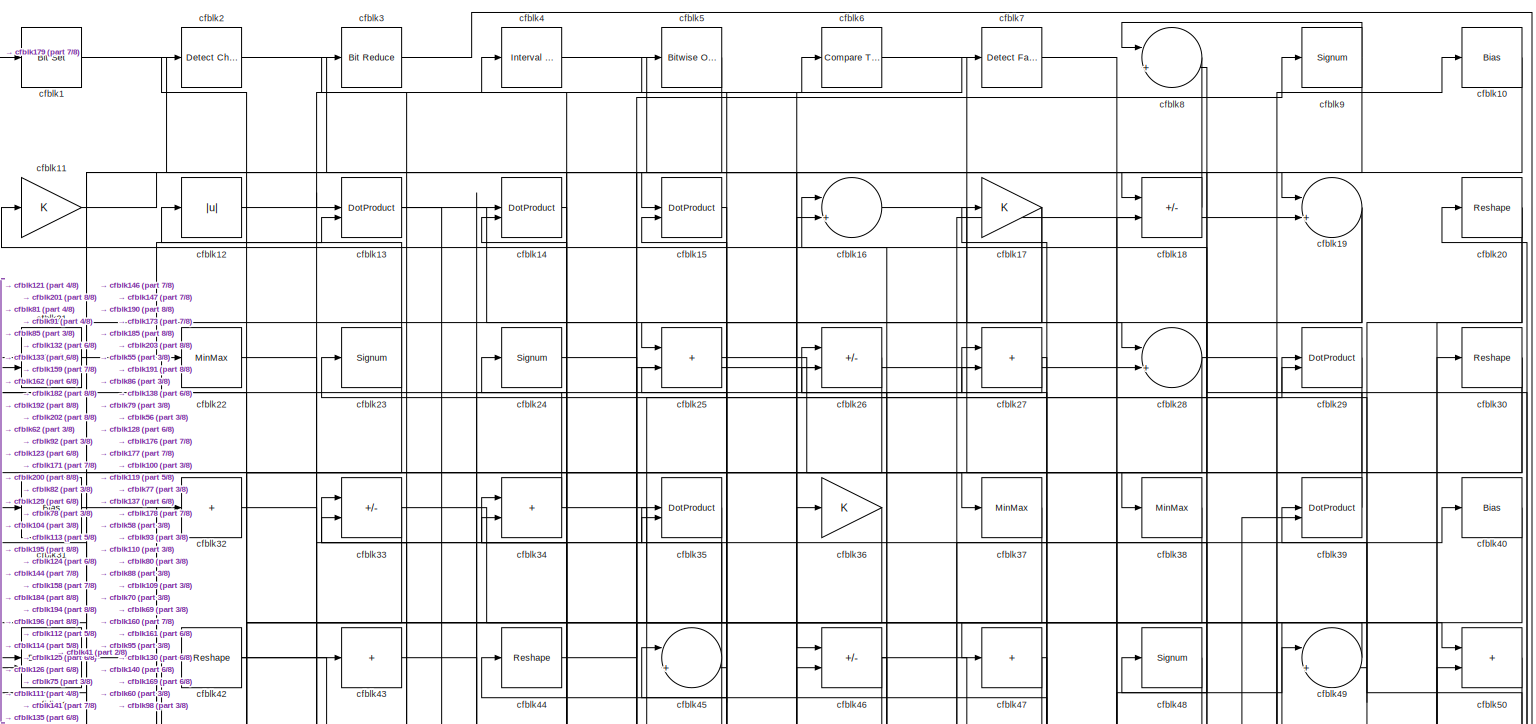
[diagram: root canvas - part 1/8, full width, top band]
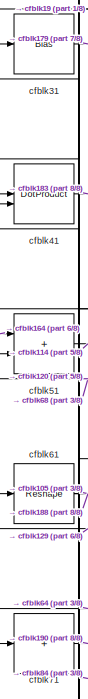
[diagram: root canvas - part 2/8, top left region]
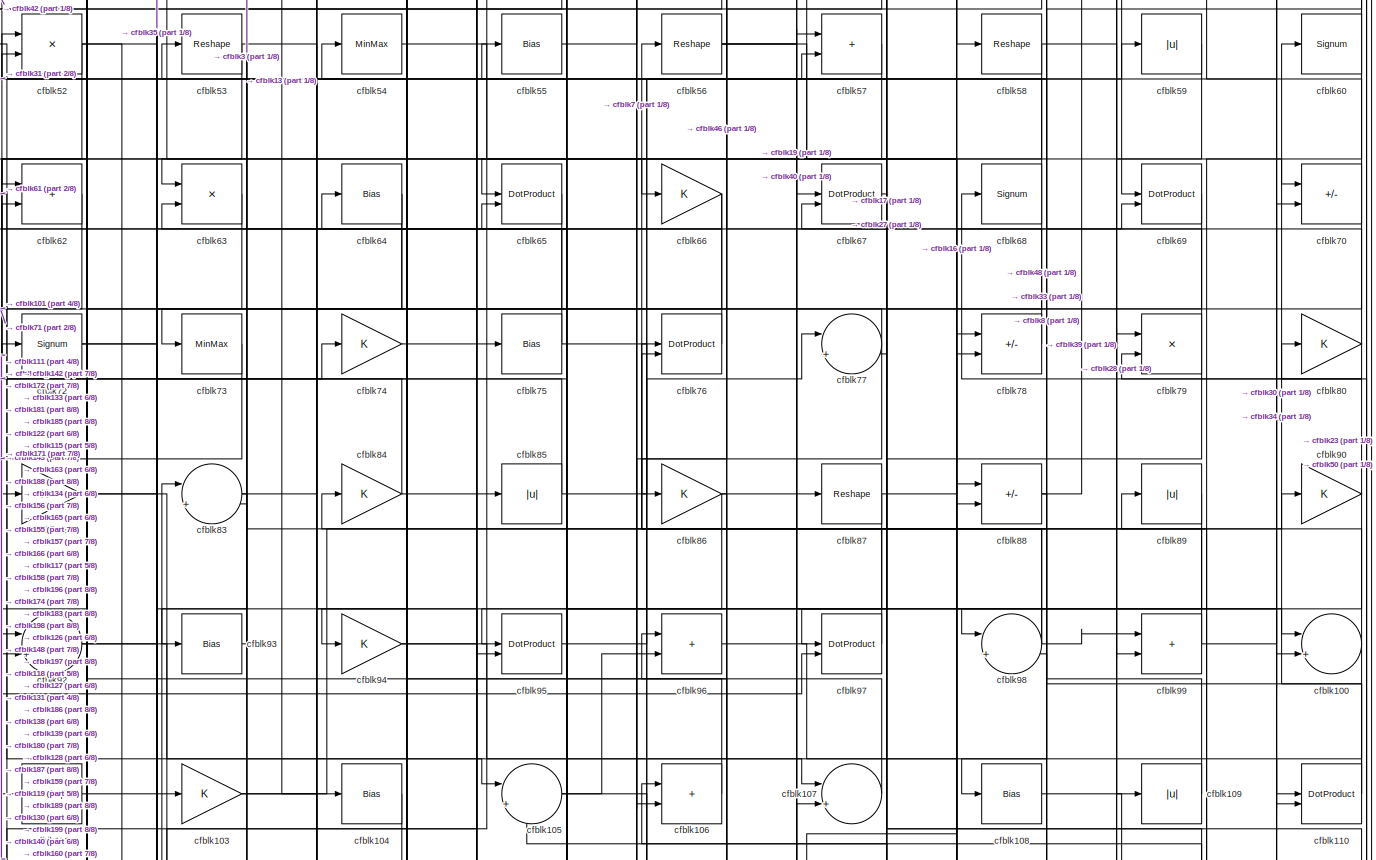
[diagram: root canvas - part 3/8, full width, middle band]
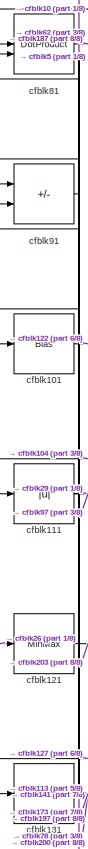
[diagram: root canvas - part 4/8, middle left region]
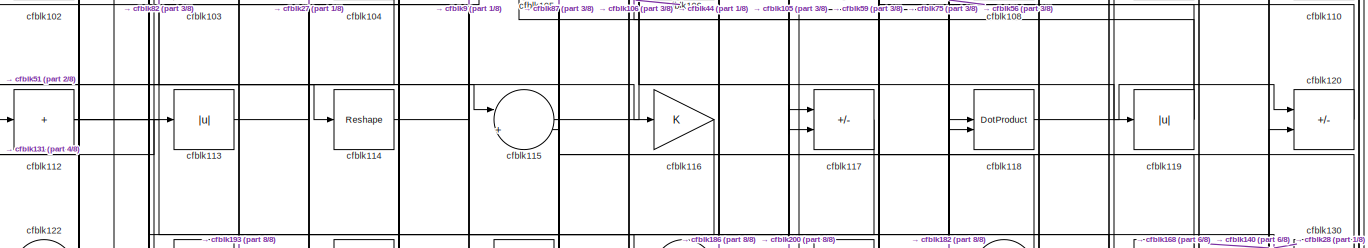
[diagram: root canvas - part 5/8, full width, middle band]
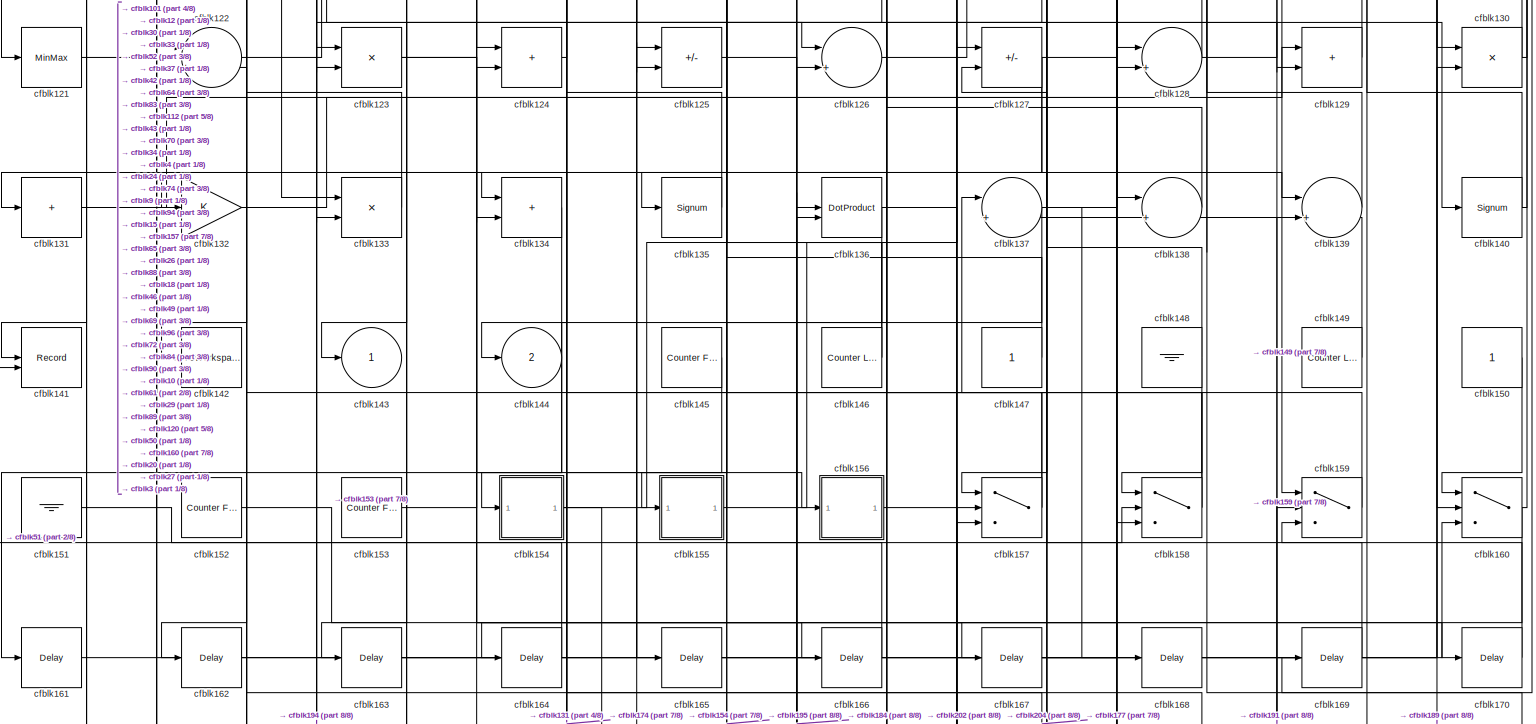
[diagram: root canvas - part 6/8, full width, bottom band]
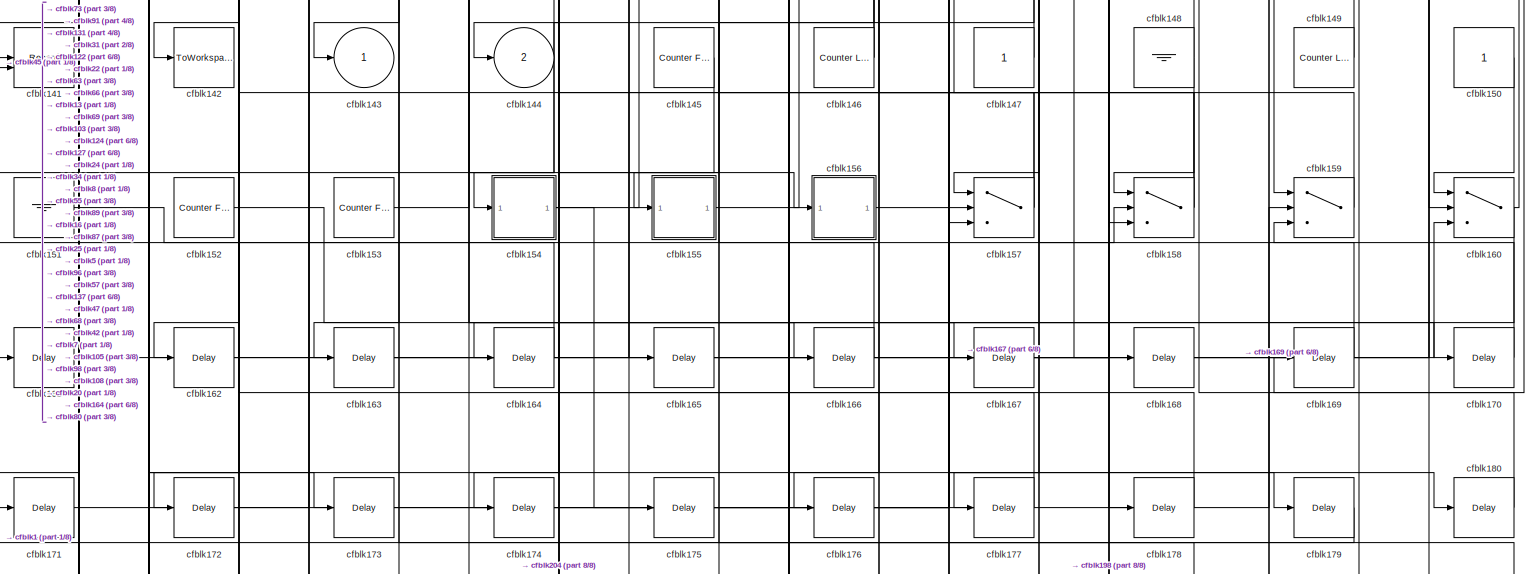
[diagram: root canvas - part 7/8, full width, bottom band]
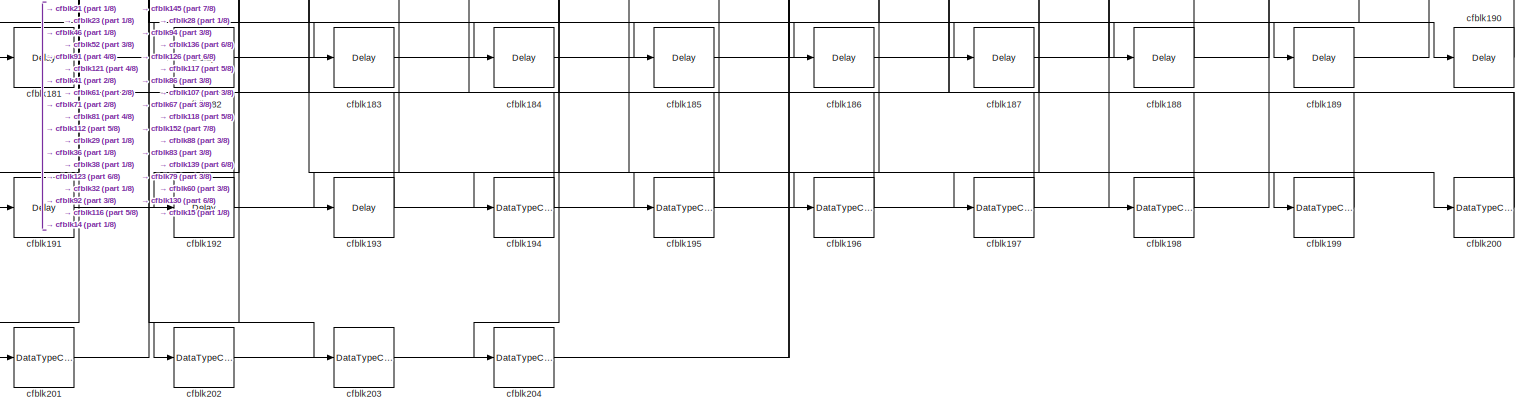
[diagram: root canvas - part 8/8, full width, bottom band]
MODEL slx_2ba98c5d0d67
KIND model
CONFIG AbsTol = auto
CONFIG EnableMultiTasking = off
CONFIG FixedStep = auto
CONFIG MaxStep = auto
CONFIG MinStep = auto
CONFIG RelTol = 1e-3
CONFIG SampleTimeConstraint = Unconstrained
CONFIG SolverName = VariableStepAuto
CONFIG StartTime = 0.0
CONFIG StopTime = 10.0
BLOCK [Reference] cfblk1  REF=simulink/Logic and Bit
Operations/Bit Set
  LibrarySourceBlock = hdlsllib/Logic and Bit\nOperations/Bit Set
  SourceBlock = simulink/Logic and Bit\nOperations/Bit Set
  SourceType = Bit Set
BLOCK [Bias] cfblk10
  Bias = 0.0
  SaturateOnIntegerOverflow = off
BLOCK [Sum] cfblk100
  Inputs = |++
BLOCK [Bias] cfblk101
  Bias = 0.0
  SaturateOnIntegerOverflow = off
BLOCK [Reshape] cfblk102
BLOCK [Gain] cfblk103
BLOCK [Bias] cfblk104
  Bias = 0.0
  SaturateOnIntegerOverflow = off
BLOCK [Sum] cfblk105
  Inputs = |++
BLOCK [Sum] cfblk106
  IconShape = rectangular
BLOCK [Sum] cfblk107
  Inputs = |++
BLOCK [Bias] cfblk108
  Bias = 0.0
  SaturateOnIntegerOverflow = off
BLOCK [Abs] cfblk109
  SaturateOnIntegerOverflow = off
BLOCK [Gain] cfblk11
BLOCK [DotProduct] cfblk110
  OutDataTypeStr = Inherit: Inherit via internal rule
BLOCK [Abs] cfblk111
  SaturateOnIntegerOverflow = off
BLOCK [Sum] cfblk112
  IconShape = rectangular
  Inputs = +
BLOCK [Abs] cfblk113
  SaturateOnIntegerOverflow = off
BLOCK [Reshape] cfblk114
BLOCK [Sum] cfblk115
  Inputs = |++
BLOCK [Gain] cfblk116
BLOCK [Sum] cfblk117
  IconShape = rectangular
  Inputs = +-
BLOCK [DotProduct] cfblk118
  OutDataTypeStr = Inherit: Inherit via internal rule
BLOCK [Abs] cfblk119
  SaturateOnIntegerOverflow = off
BLOCK [Abs] cfblk12
  SaturateOnIntegerOverflow = off
BLOCK [Sum] cfblk120
  IconShape = rectangular
  Inputs = +-
BLOCK [MinMax] cfblk121
BLOCK [Sum] cfblk122
  Inputs = |++
BLOCK [Product] cfblk123
  Inputs = */
  RndMeth = Zero
  SaturateOnIntegerOverflow = on
BLOCK [Sum] cfblk124
  IconShape = rectangular
BLOCK [Sum] cfblk125
  IconShape = rectangular
  Inputs = +-
BLOCK [Sum] cfblk126
  Inputs = |++
BLOCK [Sum] cfblk127
  IconShape = rectangular
  Inputs = +-
BLOCK [Sum] cfblk128
  Inputs = |++
BLOCK [Sum] cfblk129
  IconShape = rectangular
BLOCK [DotProduct] cfblk13
  OutDataTypeStr = Inherit: Inherit via internal rule
BLOCK [Product] cfblk130
  Inputs = */
  RndMeth = Zero
  SaturateOnIntegerOverflow = on
BLOCK [Sum] cfblk131
  IconShape = rectangular
  Inputs = +
BLOCK [Gain] cfblk132
BLOCK [Product] cfblk133
  Inputs = */
  RndMeth = Zero
  SaturateOnIntegerOverflow = on
BLOCK [Sum] cfblk134
  IconShape = rectangular
BLOCK [Signum] cfblk135
BLOCK [DotProduct] cfblk136
  OutDataTypeStr = Inherit: Inherit via internal rule
BLOCK [Sum] cfblk137
  Inputs = |++
BLOCK [Sum] cfblk138
  Inputs = |++
BLOCK [Sum] cfblk139
  Inputs = |++
BLOCK [DotProduct] cfblk14
  OutDataTypeStr = Inherit: Inherit via internal rule
BLOCK [Signum] cfblk140
BLOCK [Record] cfblk141
  CompatibilityTag = XY
  FileSettingsInternal = {"entries":[{"content":{"excelSettings":{"content":{},"type":"Streamout.ExcelSettings"}},"type":"Streamout.FileSettingStorage","uuid":""}],"packageUris":["http:\/\/schema.mathworks.com\/mf0\/streamout_blocks\/R2020a"],"version":"1.0"}
  Layout = [1 1]
  SignalsInternal = {"entries":[{"content":{"signals":[{"content":{"blockPath":[],"dimensions":[1],"domain":"","lineColor":"#a2142f","plots":[1],"port":1,"signalID":998,"signalName":"XY Graph:1"},"type":"RecordBlkView.Signal","uuid":""},{"content":{"blockPath":[],"dimensions":[1],"domain":"","lineColor":"#139fff","plots":[1],"port":2,"signalID":1001,"signalName":"XY Graph:2"},"type":"RecordBlkView.Signal","uuid":""}]...<+145ch>
  VisualizationBindings = {"xyplotplugin":{"info":[{"series":[{"bindingParametersList":[{"parameter":"X-Axis","signalID":998,"signalName":"XY Graph:1"},{"parameter":"Y-Axis","signalID":1001,"signalName":"XY Graph:2"}],"seriesID":57982}],"subplotID":1}]}}
  st = -1
BLOCK [ToWorkspace] cfblk142
  MaxDataPoints = inf
  SampleTime = -1
  SaveFormat = Timeseries
  VariableName = simout
BLOCK [Outport] cfblk143
  VectorParamsAs1DForOutWhenUnconnected = off
BLOCK [Outport] cfblk144
  Port = 2
  VectorParamsAs1DForOutWhenUnconnected = off
BLOCK [Reference] cfblk145  REF=hdlsllib/Sources/Counter
Free-Running
  SourceBlock = hdlsllib/Sources/Counter\nFree-Running
  SourceType = Counter Free-Running
BLOCK [Reference] cfblk146  REF=hdlsllib/Sources/Counter
Limited
  SourceBlock = hdlsllib/Sources/Counter\nLimited
  SourceType = Counter Limited
BLOCK [Constant] cfblk147
  SampleTime = -1
BLOCK [Ground] cfblk148
BLOCK [Reference] cfblk149  REF=hdlsllib/Sources/Counter
Limited
  SourceBlock = hdlsllib/Sources/Counter\nLimited
  SourceType = Counter Limited
BLOCK [DotProduct] cfblk15
  OutDataTypeStr = Inherit: Inherit via internal rule
BLOCK [Constant] cfblk150
  SampleTime = -1
BLOCK [Ground] cfblk151
BLOCK [Reference] cfblk152  REF=hdlsllib/Sources/Counter
Free-Running
  SourceBlock = hdlsllib/Sources/Counter\nFree-Running
  SourceType = Counter Free-Running
BLOCK [Reference] cfblk153  REF=hdlsllib/Sources/Counter
Free-Running
  SourceBlock = hdlsllib/Sources/Counter\nFree-Running
  SourceType = Counter Free-Running
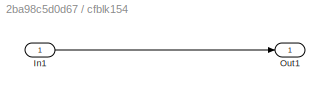
BLOCK [SubSystem] cfblk154
  LibrarySourceBlock = hdlsllib/Ports &\nSubsystems/Subsystem
BLOCK [Inport] cfblk154/In1
BLOCK [Outport] cfblk154/Out1
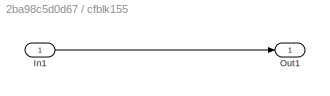
BLOCK [SubSystem] cfblk155
  LibrarySourceBlock = hdlsllib/Ports &\nSubsystems/Subsystem
BLOCK [Inport] cfblk155/In1
BLOCK [Outport] cfblk155/Out1
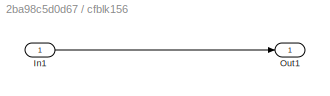
BLOCK [SubSystem] cfblk156
  LibrarySourceBlock = hdlsllib/Ports &\nSubsystems/Subsystem
BLOCK [Inport] cfblk156/In1
BLOCK [Outport] cfblk156/Out1
BLOCK [Switch] cfblk157
  InputSameDT = off
  SaturateOnIntegerOverflow = off
BLOCK [Switch] cfblk158
  InputSameDT = off
  SaturateOnIntegerOverflow = off
BLOCK [Switch] cfblk159
  InputSameDT = off
  SaturateOnIntegerOverflow = off
BLOCK [Sum] cfblk16
  Inputs = |++
BLOCK [Switch] cfblk160
  InputSameDT = off
  SaturateOnIntegerOverflow = off
BLOCK [Delay] cfblk161
  InputPortMap = u0
  SampleTime = 1
BLOCK [Delay] cfblk162
  InputPortMap = u0
  SampleTime = 1
BLOCK [Delay] cfblk163
  InputPortMap = u0
  SampleTime = 1
BLOCK [Delay] cfblk164
  InputPortMap = u0
  SampleTime = 1
BLOCK [Delay] cfblk165
  InputPortMap = u0
  SampleTime = 1
BLOCK [Delay] cfblk166
  InputPortMap = u0
  SampleTime = 1
BLOCK [Delay] cfblk167
  InputPortMap = u0
  SampleTime = 1
BLOCK [Delay] cfblk168
  InputPortMap = u0
  SampleTime = 1
BLOCK [Delay] cfblk169
  InputPortMap = u0
  SampleTime = 1
BLOCK [Gain] cfblk17
BLOCK [Delay] cfblk170
  InputPortMap = u0
  SampleTime = 1
BLOCK [Delay] cfblk171
  InputPortMap = u0
  SampleTime = 1
BLOCK [Delay] cfblk172
  InputPortMap = u0
  SampleTime = 1
BLOCK [Delay] cfblk173
  InputPortMap = u0
  SampleTime = 1
BLOCK [Delay] cfblk174
  InputPortMap = u0
  SampleTime = 1
BLOCK [Delay] cfblk175
  InputPortMap = u0
  SampleTime = 1
BLOCK [Delay] cfblk176
  InputPortMap = u0
  SampleTime = 1
BLOCK [Delay] cfblk177
  InputPortMap = u0
  SampleTime = 1
BLOCK [Delay] cfblk178
  InputPortMap = u0
  SampleTime = 1
BLOCK [Delay] cfblk179
  InputPortMap = u0
  SampleTime = 1
BLOCK [Sum] cfblk18
  IconShape = rectangular
  Inputs = +-
BLOCK [Delay] cfblk180
  InputPortMap = u0
  SampleTime = 1
BLOCK [Delay] cfblk181
  InputPortMap = u0
  SampleTime = 1
BLOCK [Delay] cfblk182
  InputPortMap = u0
  SampleTime = 1
BLOCK [Delay] cfblk183
  InputPortMap = u0
  SampleTime = 1
BLOCK [Delay] cfblk184
  InputPortMap = u0
  SampleTime = 1
BLOCK [Delay] cfblk185
  InputPortMap = u0
  SampleTime = 1
BLOCK [Delay] cfblk186
  InputPortMap = u0
  SampleTime = 1
BLOCK [Delay] cfblk187
  InputPortMap = u0
  SampleTime = 1
BLOCK [Delay] cfblk188
  InputPortMap = u0
  SampleTime = 1
BLOCK [Delay] cfblk189
  InputPortMap = u0
  SampleTime = 1
BLOCK [Sum] cfblk19
  Inputs = |++
BLOCK [Delay] cfblk190
  InputPortMap = u0
  SampleTime = 1
BLOCK [Delay] cfblk191
  InputPortMap = u0
  SampleTime = 1
BLOCK [Delay] cfblk192
  InputPortMap = u0
  SampleTime = 1
BLOCK [Delay] cfblk193
  InputPortMap = u0
  SampleTime = 1
BLOCK [DataTypeConversion] cfblk194
  OutDataTypeStr = uint8
  RndMeth = Floor
  SaturateOnIntegerOverflow = off
BLOCK [DataTypeConversion] cfblk195
  OutDataTypeStr = uint8
  RndMeth = Floor
  SaturateOnIntegerOverflow = off
BLOCK [DataTypeConversion] cfblk196
  OutDataTypeStr = uint8
  RndMeth = Floor
  SaturateOnIntegerOverflow = off
BLOCK [DataTypeConversion] cfblk197
  OutDataTypeStr = uint8
  RndMeth = Floor
  SaturateOnIntegerOverflow = off
BLOCK [DataTypeConversion] cfblk198
  OutDataTypeStr = uint8
  RndMeth = Floor
  SaturateOnIntegerOverflow = off
BLOCK [DataTypeConversion] cfblk199
  OutDataTypeStr = uint8
  RndMeth = Floor
  SaturateOnIntegerOverflow = off
BLOCK [Reference] cfblk2  REF=simulink/Logic and Bit
Operations/Detect
Change
  LibrarySourceBlock = hdlsllib/Logic and Bit\nOperations/Detect\nChange
  SourceBlock = simulink/Logic and Bit\nOperations/Detect\nChange
  SourceType = Detect Change
BLOCK [Reshape] cfblk20
BLOCK [DataTypeConversion] cfblk200
  RndMeth = Floor
  SaturateOnIntegerOverflow = off
BLOCK [DataTypeConversion] cfblk201
  OutDataTypeStr = uint8
  RndMeth = Floor
  SaturateOnIntegerOverflow = off
BLOCK [DataTypeConversion] cfblk202
  OutDataTypeStr = uint8
  RndMeth = Floor
  SaturateOnIntegerOverflow = off
BLOCK [DataTypeConversion] cfblk203
  OutDataTypeStr = uint8
  RndMeth = Floor
  SaturateOnIntegerOverflow = off
BLOCK [DataTypeConversion] cfblk204
  OutDataTypeStr = uint8
  RndMeth = Floor
  SaturateOnIntegerOverflow = off
BLOCK [DotProduct] cfblk21
  OutDataTypeStr = Inherit: Inherit via internal rule
BLOCK [MinMax] cfblk22
BLOCK [Signum] cfblk23
BLOCK [Signum] cfblk24
BLOCK [Sum] cfblk25
  IconShape = rectangular
BLOCK [Sum] cfblk26
  IconShape = rectangular
  Inputs = +-
BLOCK [Sum] cfblk27
  IconShape = rectangular
BLOCK [Sum] cfblk28
  Inputs = |++
BLOCK [DotProduct] cfblk29
  OutDataTypeStr = Inherit: Inherit via internal rule
BLOCK [Reference] cfblk3  REF=hdlsllib/Logic and Bit
Operations/Bit Reduce
  SourceBlock = hdlsllib/Logic and Bit\nOperations/Bit Reduce
  SourceType = Bit Reduce
BLOCK [Reshape] cfblk30
BLOCK [Bias] cfblk31
  Bias = 0.0
  SaturateOnIntegerOverflow = off
BLOCK [Sum] cfblk32
  IconShape = rectangular
  Inputs = +
BLOCK [Sum] cfblk33
  IconShape = rectangular
  Inputs = +-
BLOCK [Sum] cfblk34
  IconShape = rectangular
BLOCK [DotProduct] cfblk35
  OutDataTypeStr = Inherit: Inherit via internal rule
BLOCK [Gain] cfblk36
BLOCK [MinMax] cfblk37
BLOCK [MinMax] cfblk38
BLOCK [DotProduct] cfblk39
  OutDataTypeStr = Inherit: Inherit via internal rule
BLOCK [Reference] cfblk4  REF=hdlsllib/Logic and Bit
Operations/Interval Test
  SourceBlock = hdlsllib/Logic and Bit\nOperations/Interval Test
  SourceType = Interval Test
BLOCK [Bias] cfblk40
  Bias = 0.0
  SaturateOnIntegerOverflow = off
BLOCK [DotProduct] cfblk41
  OutDataTypeStr = Inherit: Inherit via internal rule
BLOCK [Reshape] cfblk42
BLOCK [Sum] cfblk43
  IconShape = rectangular
  Inputs = +
BLOCK [Reshape] cfblk44
BLOCK [Sum] cfblk45
  Inputs = |++
BLOCK [Sum] cfblk46
  IconShape = rectangular
  Inputs = +-
BLOCK [Sum] cfblk47
  IconShape = rectangular
  Inputs = +
BLOCK [Signum] cfblk48
BLOCK [Sum] cfblk49
  Inputs = |++
BLOCK [Reference] cfblk5  REF=simulink/Logic and Bit
Operations/Bitwise
Operator
  LibrarySourceBlock = hdlsllib/Logic and Bit\nOperations/Bitwise\nOperator
  SourceBlock = simulink/Logic and Bit\nOperations/Bitwise\nOperator
  SourceType = Bitwise Operator
BLOCK [Sum] cfblk50
  IconShape = rectangular
BLOCK [Sum] cfblk51
  IconShape = rectangular
BLOCK [Product] cfblk52
  Inputs = */
  RndMeth = Zero
  SaturateOnIntegerOverflow = on
BLOCK [Reshape] cfblk53
BLOCK [MinMax] cfblk54
BLOCK [Bias] cfblk55
  Bias = 0.0
  SaturateOnIntegerOverflow = off
BLOCK [Reshape] cfblk56
BLOCK [Sum] cfblk57
  IconShape = rectangular
BLOCK [Reshape] cfblk58
BLOCK [Abs] cfblk59
  SaturateOnIntegerOverflow = off
BLOCK [Reference] cfblk6  REF=hdlsllib/Logic and Bit
Operations/Compare
To Constant
  SourceBlock = hdlsllib/Logic and Bit\nOperations/Compare\nTo Constant
  SourceType = Compare To Constant
BLOCK [Signum] cfblk60
BLOCK [Reshape] cfblk61
BLOCK [Sum] cfblk62
  IconShape = rectangular
BLOCK [Product] cfblk63
  Inputs = */
  RndMeth = Zero
  SaturateOnIntegerOverflow = on
BLOCK [Bias] cfblk64
  Bias = 0.0
  SaturateOnIntegerOverflow = off
BLOCK [DotProduct] cfblk65
  OutDataTypeStr = Inherit: Inherit via internal rule
BLOCK [Gain] cfblk66
BLOCK [DotProduct] cfblk67
  OutDataTypeStr = Inherit: Inherit via internal rule
BLOCK [Signum] cfblk68
BLOCK [DotProduct] cfblk69
  OutDataTypeStr = Inherit: Inherit via internal rule
BLOCK [Reference] cfblk7  REF=hdlsllib/Logic and Bit
Operations/Detect Fall
Nonpositive
  SourceBlock = hdlsllib/Logic and Bit\nOperations/Detect Fall\nNonpositive
  SourceType = Detect Fall Nonpositive
BLOCK [Sum] cfblk70
  IconShape = rectangular
  Inputs = +-
BLOCK [Sum] cfblk71
  IconShape = rectangular
  Inputs = +
BLOCK [Signum] cfblk72
BLOCK [MinMax] cfblk73
BLOCK [Gain] cfblk74
BLOCK [Bias] cfblk75
  Bias = 0.0
  SaturateOnIntegerOverflow = off
BLOCK [DotProduct] cfblk76
  OutDataTypeStr = Inherit: Inherit via internal rule
BLOCK [Sum] cfblk77
  Inputs = |++
BLOCK [Sum] cfblk78
  IconShape = rectangular
  Inputs = +-
BLOCK [Product] cfblk79
  Inputs = */
  RndMeth = Zero
  SaturateOnIntegerOverflow = on
BLOCK [Sum] cfblk8
  Inputs = |++
BLOCK [Gain] cfblk80
BLOCK [DotProduct] cfblk81
  OutDataTypeStr = Inherit: Inherit via internal rule
BLOCK [Gain] cfblk82
BLOCK [Sum] cfblk83
  Inputs = |++
BLOCK [Gain] cfblk84
BLOCK [Abs] cfblk85
  SaturateOnIntegerOverflow = off
BLOCK [Gain] cfblk86
BLOCK [Reshape] cfblk87
BLOCK [Sum] cfblk88
  IconShape = rectangular
  Inputs = +-
BLOCK [Abs] cfblk89
  SaturateOnIntegerOverflow = off
BLOCK [Signum] cfblk9
BLOCK [Gain] cfblk90
BLOCK [Sum] cfblk91
  IconShape = rectangular
  Inputs = +-
BLOCK [Sum] cfblk92
  Inputs = |++
BLOCK [Bias] cfblk93
  Bias = 0.0
  SaturateOnIntegerOverflow = off
BLOCK [Gain] cfblk94
BLOCK [DotProduct] cfblk95
  OutDataTypeStr = Inherit: Inherit via internal rule
BLOCK [Sum] cfblk96
  IconShape = rectangular
BLOCK [DotProduct] cfblk97
  OutDataTypeStr = Inherit: Inherit via internal rule
BLOCK [Sum] cfblk98
  Inputs = |++
BLOCK [Sum] cfblk99
  IconShape = rectangular
NET cfblk100:1 -> cfblk110:2, cfblk17:1
LINE cfblk101:1 -> cfblk122:1
LINE cfblk102:1 -> cfblk74:1
NET cfblk103:1 -> cfblk156:1, cfblk90:1
LINE cfblk104:1 -> cfblk111:1
NET cfblk105:1 -> cfblk117:2, cfblk96:2
LINE cfblk106:1 -> cfblk54:1
LINE cfblk107:1 -> cfblk52:1
LINE cfblk108:1 -> cfblk159:1
LINE cfblk109:1 -> cfblk52:2
LINE cfblk10:1 -> cfblk91:1
NET cfblk110:1 -> cfblk33:2, cfblk60:1
NET cfblk111:1 -> cfblk29:2, cfblk97:2
NET cfblk112:1 -> cfblk116:1, cfblk140:1, cfblk28:2
LINE cfblk113:1 -> cfblk27:1
LINE cfblk114:1 -> cfblk9:1
LINE cfblk115:1 -> cfblk59:1
LINE cfblk116:1 -> cfblk193:1
LINE cfblk117:1 -> cfblk186:1
LINE cfblk118:1 -> cfblk120:1
NET cfblk119:1 -> cfblk106:1, cfblk44:1
LINE cfblk11:1 -> cfblk19:1
LINE cfblk120:1 -> cfblk51:2
LINE cfblk121:1 -> cfblk203:1
LINE cfblk122:1 -> cfblk83:1
NET cfblk123:1 -> cfblk166:1, cfblk167:1
LINE cfblk124:1 -> cfblk4:1
LINE cfblk125:1 -> cfblk139:1
LINE cfblk126:1 -> cfblk88:2
NET cfblk127:1 -> cfblk131:1, cfblk174:1, cfblk69:2
NET cfblk128:1 -> cfblk10:1, cfblk72:1
LINE cfblk129:1 -> cfblk61:1
LINE cfblk12:1 -> cfblk6:1
NET cfblk130:1 -> cfblk20:1, cfblk27:2
NET cfblk131:1 -> cfblk113:1, cfblk173:1, cfblk78:2
LINE cfblk132:1 -> cfblk129:1
LINE cfblk133:1 -> cfblk12:1
LINE cfblk134:1 -> cfblk161:1
LINE cfblk135:1 -> cfblk34:1
NET cfblk136:1 -> cfblk170:1, cfblk195:1
NET cfblk137:1 -> cfblk154:1, cfblk168:1, cfblk49:1
LINE cfblk138:1 -> cfblk26:1
LINE cfblk139:1 -> cfblk84:1
NET cfblk13:1 -> cfblk104:1, cfblk75:1
NET cfblk140:1 -> cfblk29:1, cfblk89:1
LINE cfblk145:1 -> cfblk204:1
NET cfblk146:1 -> cfblk25:2, cfblk5:1
LINE cfblk147:1 -> cfblk45:1
NET cfblk148:1 -> cfblk105:2, cfblk158:1
LINE cfblk149:1 -> cfblk137:2
LINE cfblk14:1 -> cfblk194:1
LINE cfblk150:1 -> cfblk160:1
LINE cfblk151:1 -> cfblk158:2
LINE cfblk152:1 -> cfblk198:1
LINE cfblk153:1 -> cfblk124:2
LINE cfblk154/In1:1 -> cfblk154/Out1:1
NET cfblk154:1 -> cfblk127:1, cfblk175:1
LINE cfblk155/In1:1 -> cfblk155/Out1:1
LINE cfblk155:1 -> cfblk87:1
LINE cfblk156/In1:1 -> cfblk156/Out1:1
LINE cfblk156:1 -> cfblk180:1
NET cfblk157:1 -> cfblk137:1, cfblk55:1
NET cfblk158:1 -> cfblk24:1, cfblk96:1
LINE cfblk159:1 -> cfblk22:1
LINE cfblk15:1 -> cfblk135:1
NET cfblk160:1 -> cfblk164:1, cfblk80:1
LINE cfblk161:1 -> cfblk50:2
LINE cfblk162:1 -> cfblk18:2
LINE cfblk163:1 -> cfblk125:1
LINE cfblk164:1 -> cfblk51:1
LINE cfblk165:1 -> cfblk128:2
LINE cfblk166:1 -> cfblk65:2
LINE cfblk167:1 -> cfblk160:3
LINE cfblk168:1 -> cfblk120:2
LINE cfblk169:1 -> cfblk159:3
LINE cfblk16:1 -> cfblk58:1
LINE cfblk170:1 -> cfblk127:2
LINE cfblk171:1 -> cfblk13:1
LINE cfblk172:1 -> cfblk157:2
LINE cfblk173:1 -> cfblk16:2
LINE cfblk174:1 -> cfblk57:1
LINE cfblk175:1 -> cfblk157:3
LINE cfblk176:1 -> cfblk159:2
LINE cfblk177:1 -> cfblk122:2
LINE cfblk178:1 -> cfblk34:2
LINE cfblk179:1 -> cfblk1:1
NET cfblk17:1 -> cfblk25:1, cfblk45:2
LINE cfblk180:1 -> cfblk98:2
LINE cfblk181:1 -> cfblk92:2
LINE cfblk182:1 -> cfblk118:2
LINE cfblk183:1 -> cfblk107:2
LINE cfblk184:1 -> cfblk126:2
LINE cfblk185:1 -> cfblk46:2
LINE cfblk186:1 -> cfblk88:1
LINE cfblk187:1 -> cfblk79:1
LINE cfblk188:1 -> cfblk83:2
LINE cfblk189:1 -> cfblk130:2
LINE cfblk18:1 -> cfblk15:1
LINE cfblk190:1 -> cfblk15:2
LINE cfblk191:1 -> cfblk139:2
LINE cfblk192:1 -> cfblk21:2
LINE cfblk193:1 -> cfblk112:1
LINE cfblk194:1 -> cfblk123:1
LINE cfblk195:1 -> cfblk14:1
LINE cfblk196:1 -> cfblk14:2
LINE cfblk197:1 -> cfblk91:2
LINE cfblk198:1 -> cfblk67:1
LINE cfblk199:1 -> cfblk67:2
NET cfblk19:1 -> cfblk38:1, cfblk41:1
LINE cfblk1:1 -> cfblk18:1
NET cfblk200:1 -> cfblk117:1, cfblk81:2
LINE cfblk201:1 -> cfblk32:1
LINE cfblk202:1 -> cfblk136:1
LINE cfblk203:1 -> cfblk36:1
LINE cfblk204:1 -> cfblk136:2
NET cfblk20:1 -> cfblk160:2, cfblk49:2
LINE cfblk21:1 -> cfblk13:2
LINE cfblk22:1 -> cfblk43:1
NET cfblk23:1 -> cfblk201:1, cfblk2:1
LINE cfblk24:1 -> cfblk126:1
LINE cfblk25:1 -> cfblk37:1
LINE cfblk26:1 -> cfblk121:1
NET cfblk27:1 -> cfblk26:2, cfblk77:2
NET cfblk28:1 -> cfblk184:1, cfblk70:1
LINE cfblk29:1 -> cfblk192:1
LINE cfblk2:1 -> cfblk48:1
NET cfblk30:1 -> cfblk162:1, cfblk62:1
LINE cfblk31:1 -> cfblk179:1
LINE cfblk32:1 -> cfblk200:1
NET cfblk33:1 -> cfblk109:1, cfblk132:1
NET cfblk34:1 -> cfblk110:1, cfblk21:1
LINE cfblk35:1 -> cfblk92:1
LINE cfblk36:1 -> cfblk202:1
LINE cfblk37:1 -> cfblk123:2
LINE cfblk38:1 -> cfblk182:1
LINE cfblk39:1 -> cfblk11:1
LINE cfblk3:1 -> cfblk169:1
LINE cfblk40:1 -> cfblk69:1
LINE cfblk41:1 -> cfblk183:1
NET cfblk42:1 -> cfblk129:2, cfblk158:3
LINE cfblk43:1 -> cfblk124:1
LINE cfblk44:1 -> cfblk50:1
NET cfblk45:1 -> cfblk141:2, cfblk35:2
NET cfblk46:1 -> cfblk128:1, cfblk191:1, cfblk86:1
NET cfblk47:1 -> cfblk176:1, cfblk177:1
LINE cfblk48:1 -> cfblk93:1
LINE cfblk49:1 -> cfblk47:1
LINE cfblk4:1 -> cfblk46:1
LINE cfblk50:1 -> cfblk98:1
LINE cfblk51:1 -> cfblk114:1
NET cfblk52:1 -> cfblk103:1, cfblk133:1, cfblk181:1
NET cfblk53:1 -> cfblk63:1, cfblk99:2
LINE cfblk54:1 -> cfblk66:1
LINE cfblk55:1 -> cfblk7:1
NET cfblk56:1 -> cfblk100:2, cfblk118:1, cfblk40:1
LINE cfblk57:1 -> cfblk82:1
NET cfblk58:1 -> cfblk100:1, cfblk102:1
LINE cfblk59:1 -> cfblk65:1
LINE cfblk5:1 -> cfblk81:1
NET cfblk60:1 -> cfblk189:1, cfblk23:1
NET cfblk61:1 -> cfblk105:1, cfblk188:1
LINE cfblk62:1 -> cfblk101:1
LINE cfblk63:1 -> cfblk142:1
NET cfblk64:1 -> cfblk133:2, cfblk71:1
LINE cfblk65:1 -> cfblk94:1
NET cfblk66:1 -> cfblk172:1, cfblk63:2
LINE cfblk67:1 -> cfblk197:1
NET cfblk68:1 -> cfblk157:1, cfblk31:1
LINE cfblk69:1 -> cfblk143:1
LINE cfblk6:1 -> cfblk28:1
NET cfblk70:1 -> cfblk134:2, cfblk39:1
LINE cfblk71:1 -> cfblk190:1
NET cfblk72:1 -> cfblk134:1, cfblk95:2
LINE cfblk73:1 -> cfblk171:1
LINE cfblk74:1 -> cfblk165:1
NET cfblk75:1 -> cfblk119:1, cfblk62:2
LINE cfblk76:1 -> cfblk64:1
NET cfblk77:1 -> cfblk106:2, cfblk73:1
LINE cfblk78:1 -> cfblk3:1
NET cfblk79:1 -> cfblk16:1, cfblk97:1
LINE cfblk7:1 -> cfblk178:1
NET cfblk80:1 -> cfblk79:2, cfblk8:2
LINE cfblk81:1 -> cfblk187:1
NET cfblk82:1 -> cfblk115:1, cfblk35:1
NET cfblk83:1 -> cfblk163:1, cfblk57:2
NET cfblk84:1 -> cfblk41:2, cfblk85:1
NET cfblk85:1 -> cfblk42:1, cfblk77:1
NET cfblk86:1 -> cfblk196:1, cfblk19:2, cfblk95:1
NET cfblk87:1 -> cfblk115:2, cfblk78:1
NET cfblk88:1 -> cfblk108:1, cfblk39:2
LINE cfblk89:1 -> cfblk155:1
LINE cfblk8:1 -> cfblk144:1
NET cfblk90:1 -> cfblk138:2, cfblk68:1
LINE cfblk91:1 -> cfblk141:1
NET cfblk92:1 -> cfblk107:1, cfblk185:1
LINE cfblk93:1 -> cfblk33:1
NET cfblk94:1 -> cfblk130:1, cfblk199:1
LINE cfblk95:1 -> cfblk30:1
LINE cfblk96:1 -> cfblk138:1
LINE cfblk97:1 -> cfblk53:1
NET cfblk98:1 -> cfblk56:1, cfblk76:1, cfblk99:1
NET cfblk99:1 -> cfblk70:2, cfblk76:2
NET cfblk9:1 -> cfblk125:2, cfblk8:1
note: NET lines group one-source signal fan-out (src -> all destinations, sorted); 1:1 wires keep LINE
